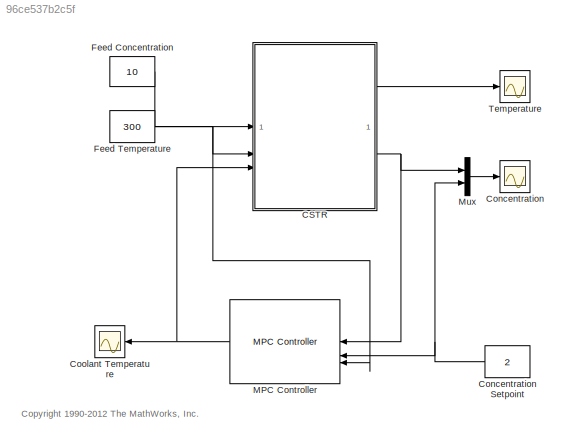
MODEL slx_96ce537b2c5f
KIND model
CONFIG AbsTol = auto
CONFIG EnableMultiTasking = on
CONFIG FixedStep = auto
CONFIG MaxStep = auto
CONFIG MinStep = auto
CONFIG RelTol = 1e-3
CONFIG SampleTimeConstraint = Unconstrained
CONFIG SolverName = ode45
CONFIG StartTime = 0
CONFIG StopTime = 40
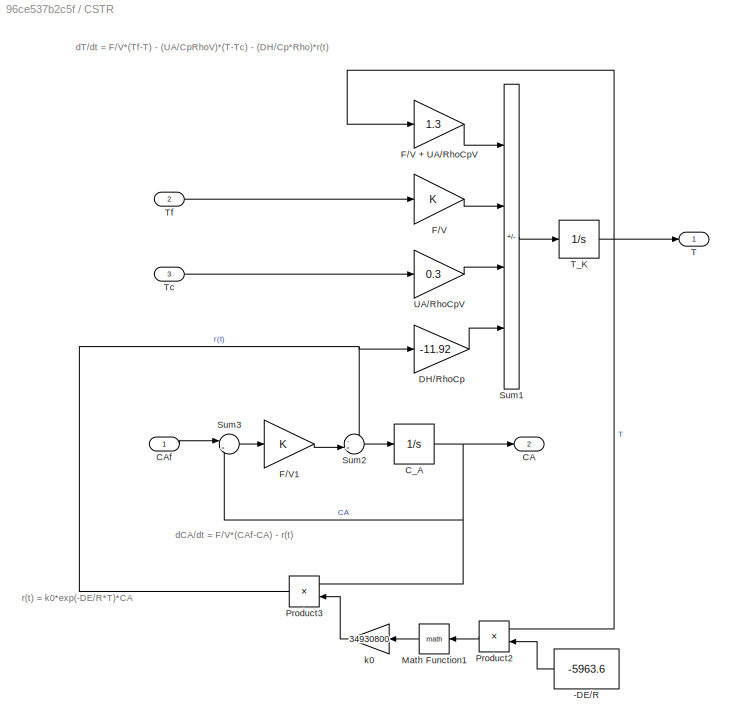
BLOCK [SubSystem] CSTR
BLOCK [Constant] CSTR/-DE//R
  SampleTime = 0
  Value = -5963.6
BLOCK [Outport] CSTR/CA
  Port = 2
BLOCK [Inport] CSTR/CAf
BLOCK [Integrator] CSTR/C_A
  InitialCondition = 8.5695
  LimitOutput = on
  LowerSaturationLimit = 0
BLOCK [Gain] CSTR/DH//RhoCp
  Gain = -11.92
  OutDataTypeStr = Inherit: Same as input
  ParamDataTypeStr = Inherit: Same as input
  SaturateOnIntegerOverflow = on
BLOCK [Gain] CSTR/F//V
  OutDataTypeStr = Inherit: Same as input
  ParamDataTypeStr = Inherit: Same as input
  SaturateOnIntegerOverflow = on
BLOCK [Gain] CSTR/F//V + UA//RhoCpV
  Gain = 1.3
  OutDataTypeStr = Inherit: Same as input
  ParamDataTypeStr = Inherit: Same as input
  SaturateOnIntegerOverflow = on
BLOCK [Gain] CSTR/F//V1
  OutDataTypeStr = Inherit: Same as input
  ParamDataTypeStr = Inherit: Same as input
  SaturateOnIntegerOverflow = on
BLOCK [Math] CSTR/Math Function1
  SignedPower = on
BLOCK [Product] CSTR/Product2
  InputSameDT = on
  Inputs = /*
  OutDataTypeStr = Inherit: Same as first input
  RndMeth = Zero
  SaturateOnIntegerOverflow = on
BLOCK [Product] CSTR/Product3
  InputSameDT = on
  OutDataTypeStr = Inherit: Same as first input
  RndMeth = Zero
  SaturateOnIntegerOverflow = on
BLOCK [Sum] CSTR/Sum1
  IconShape = rectangular
  InputSameDT = on
  Inputs = -++-
  OutDataTypeStr = Inherit: Same as first input
  SaturateOnIntegerOverflow = on
BLOCK [Sum] CSTR/Sum2
  Inputs = -+|
BLOCK [Sum] CSTR/Sum3
  Inputs = |+-
BLOCK [Outport] CSTR/T
BLOCK [Integrator] CSTR/T_K
  InitialCondition = 311.267
  LimitOutput = on
  LowerSaturationLimit = 0
BLOCK [Inport] CSTR/Tc
  Port = 3
BLOCK [Inport] CSTR/Tf
  Port = 2
BLOCK [Gain] CSTR/UA//RhoCpV
  Gain = 0.3
  OutDataTypeStr = Inherit: Same as input
  ParamDataTypeStr = Inherit: Same as input
  SaturateOnIntegerOverflow = on
BLOCK [Gain] CSTR/k0
  Gain = 34930800
  OutDataTypeStr = Inherit: Same as input
  ParamDataTypeStr = Inherit: Same as input
  SaturateOnIntegerOverflow = on
BLOCK [Scope] Concentration
  Floating = off
  NumInputPorts = 1
  ScopeSpecificationString = Simulink.scopes.TimeScopeBlockCfg('CurrentConfiguration', extmgr.ConfigurationSet(extmgr.Configuration('Core','General UI',true),extmgr.Configuration('Core','Source UI',true),extmgr.Configuration('Sources','WiredSimulink',true,'DataLoggingVariableName','ScopeData1','DataLoggingSaveFormat','StructureWithTime','DataLoggingDecimation','1','DataLoggingDecimateData',true),extmgr.Configuration('Visuals'...<+1809ch>
BLOCK [Constant] Concentration Setpoint
  SampleTime = 0
  Value = 2
BLOCK [Scope] Coolant Temperature
  Floating = off
  NumInputPorts = 1
  ScopeSpecificationString = Simulink.scopes.TimeScopeBlockCfg('CurrentConfiguration', extmgr.ConfigurationSet(extmgr.Configuration('Core','General UI',true),extmgr.Configuration('Core','Source UI',true),extmgr.Configuration('Sources','WiredSimulink',true,'DataLoggingSaveFormat','StructureWithTime','DataLoggingDecimation','1','DataLoggingDecimateData',true),extmgr.Configuration('Visuals','Time Domain',true,'SerializedDisplays...<+1682ch>
BLOCK [Constant] Feed Concentration
  SampleTime = 0
  Value = 10
BLOCK [Constant] Feed Temperature
  SampleTime = 0
  Value = 300
BLOCK [Reference] MPC Controller  REF=mpclib/MPC Controller  (lib defined in mdl_ae329e0e0455)
  SourceBlock = mpclib/MPC Controller
  SourceType = MPC
BLOCK [Mux] Mux
  DisplayOption = bar
  Inputs = 2
BLOCK [Scope] Temperature
  Floating = off
  NumInputPorts = 1
  ScopeSpecificationString = Simulink.scopes.TimeScopeBlockCfg('CurrentConfiguration', extmgr.ConfigurationSet(extmgr.Configuration('Core','General UI',true),extmgr.Configuration('Core','Source UI',true),extmgr.Configuration('Sources','WiredSimulink',true,'DataLoggingVariableName','ScopeData2','DataLoggingSaveFormat','StructureWithTime','DataLoggingDecimation','1','DataLoggingDecimateData',true),extmgr.Configuration('Visuals'...<+1801ch>
ANNOTATION (root): <copyright redacted>
ANNOTATION CSTR: dCA/dt = F/V*(CAf-CA) - r(t)
ANNOTATION CSTR: dT/dt = F/V*(Tf-T) - (UA/CpRhoV)*(T-Tc) - (DH/Cp*Rho)*r(t)
ANNOTATION CSTR: r(t) = k0*exp(-DE/R*T)*CA
LINE CSTR/-DE//R:1 -> CSTR/Product2:2
LINE CSTR/CAf:1 -> CSTR/Sum3:1
NET CSTR/C_A:1 -> CSTR/CA:1, CSTR/Product3:1, CSTR/Sum3:2
LINE CSTR/DH//RhoCp:1 -> CSTR/Sum1:4
LINE CSTR/F//V + UA//RhoCpV:1 -> CSTR/Sum1:1
LINE CSTR/F//V1:1 -> CSTR/Sum2:2
LINE CSTR/F//V:1 -> CSTR/Sum1:2
LINE CSTR/Math Function1:1 -> CSTR/k0:1
LINE CSTR/Product2:1 -> CSTR/Math Function1:1
NET CSTR/Product3:1 -> CSTR/DH//RhoCp:1, CSTR/Sum2:1
LINE CSTR/Sum1:1 -> CSTR/T_K:1
LINE CSTR/Sum2:1 -> CSTR/C_A:1
LINE CSTR/Sum3:1 -> CSTR/F//V1:1
NET CSTR/T_K:1 -> CSTR/F//V + UA//RhoCpV:1, CSTR/Product2:1, CSTR/T:1
LINE CSTR/Tc:1 -> CSTR/UA//RhoCpV:1
LINE CSTR/Tf:1 -> CSTR/F//V:1
LINE CSTR/UA//RhoCpV:1 -> CSTR/Sum1:3
LINE CSTR/k0:1 -> CSTR/Product3:2
LINE CSTR:1 -> Temperature:1
NET CSTR:2 -> MPC Controller:1, Mux:1
NET Concentration Setpoint:1 -> MPC Controller:2, Mux:2
LINE Feed Concentration:1 -> CSTR:1
NET Feed Temperature:1 -> CSTR:2, MPC Controller:3
NET MPC Controller:1 -> CSTR:3, Coolant Temperature:1
LINE Mux:1 -> Concentration:1
note: NET lines group one-source signal fan-out (src -> all destinations, sorted); 1:1 wires keep LINE
